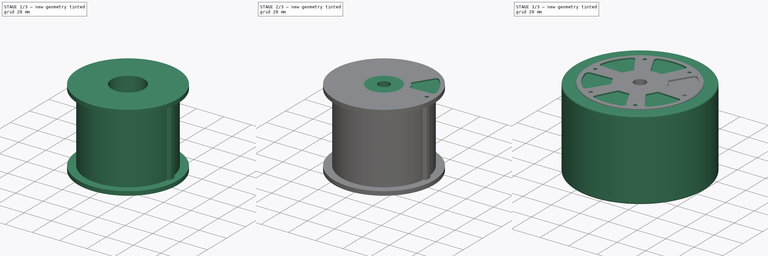
[diagram: build sequence overview — one tinted view per stage of 3, left to right]
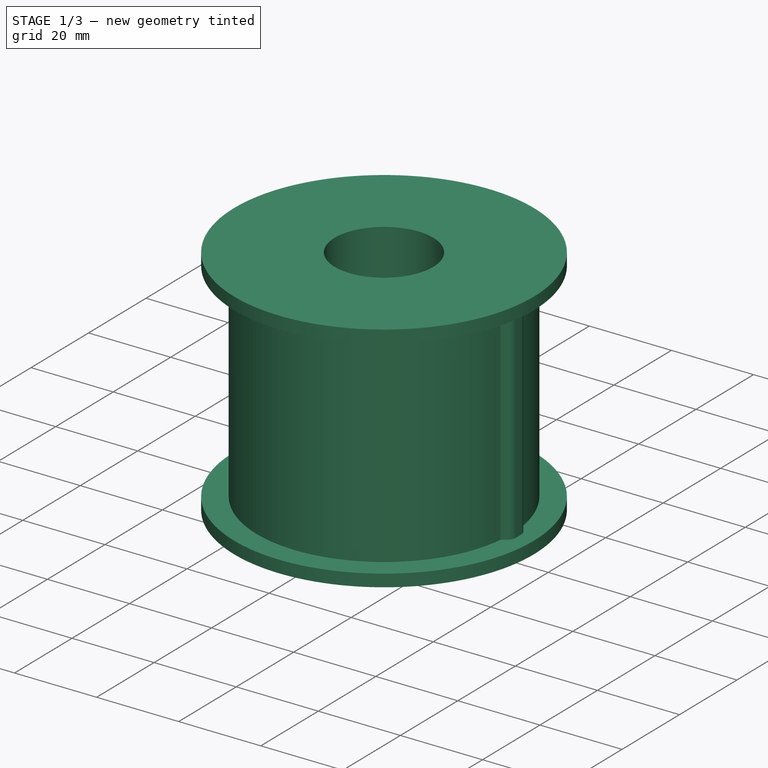
[diagram: stage 1 of 3 — iso view after this stage's code; geometry added in this stage tinted green]
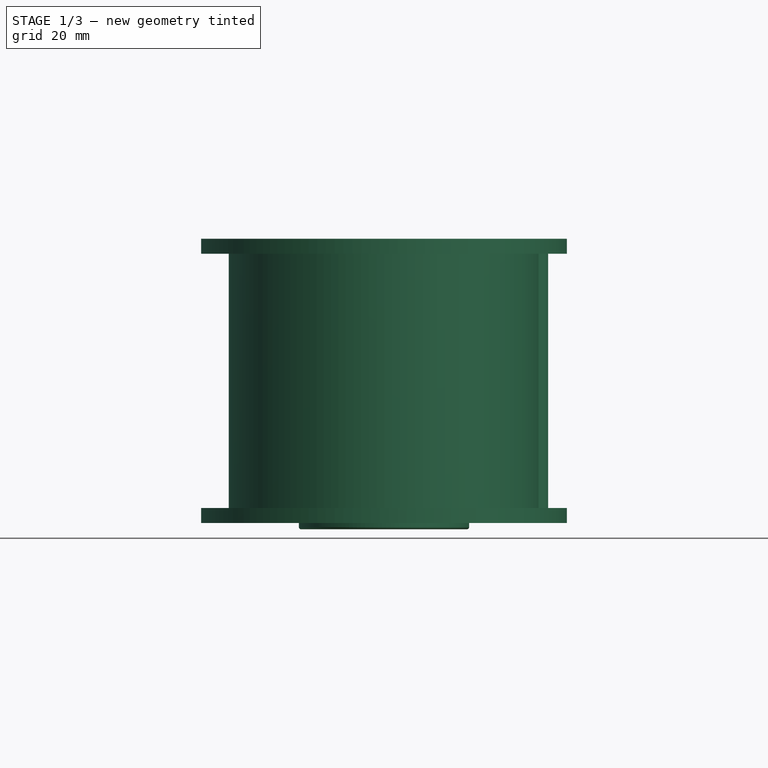
[diagram: stage 1 of 3 — front view after this stage's code; geometry added in this stage tinted green]
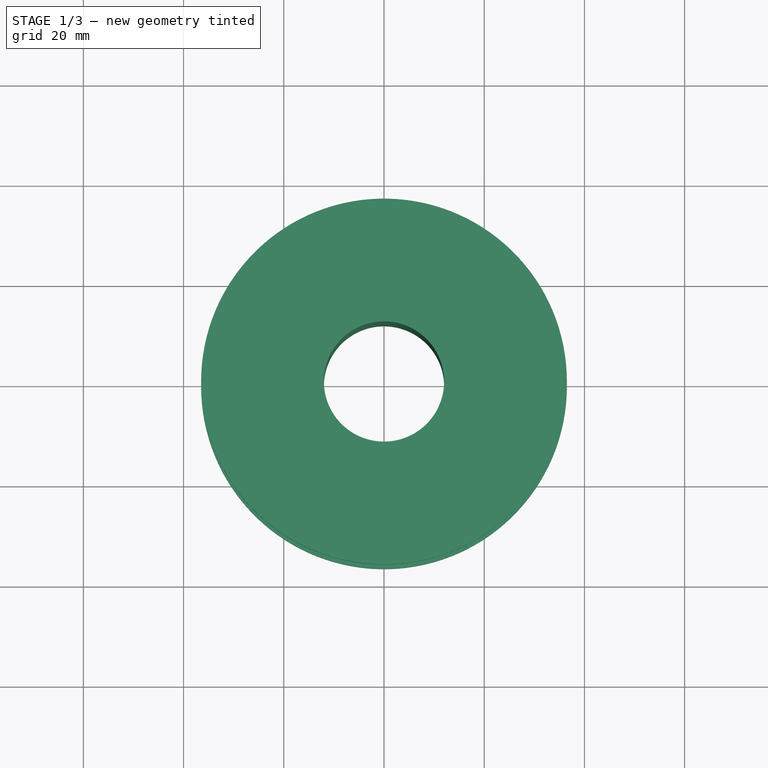
[diagram: stage 1 of 3 — top view after this stage's code; geometry added in this stage tinted green]
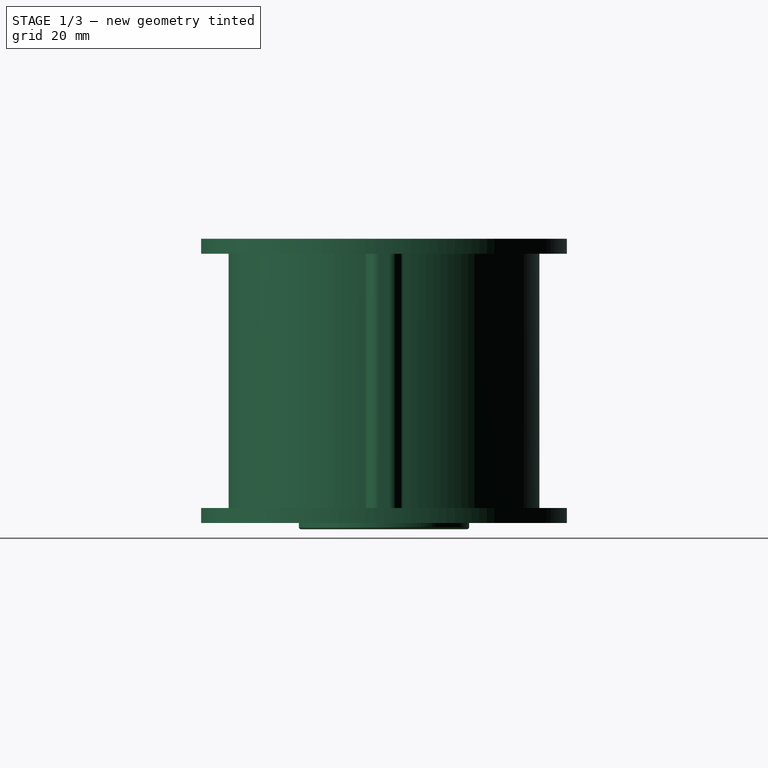
[diagram: stage 1 of 3 — right view after this stage's code; geometry added in this stage tinted green]
FCSTD DOCUMENT  (FreeCAD 0.22R37898 (Git))
Label: skateboard motor (flat type)
License: All rights reserved
LicenseURL: http://en.wikipedia.org/wiki/All_rights_reserved
objects: Sketcher::SketchObject×6, PartDesign::Revolution×3, PartDesign::Body×3, PartDesign::Pocket×2, App::FeaturePython×1, Part::Feature×1, PartDesign::Pad×1, PartDesign::PolarPattern×1, App::Part×1
note: 23 computed .brp shape members not serialized (recipe doc carries the construction recipe); baked Part::Feature solids carry a one-line shape summary decoded from their .brp

FEATURE [Sketcher::SketchObject] Sketch
  AttachmentSupport = -> [XZ_Plane002]
  FullyConstrained = true
  MapMode = 5
  Placement = pos=(0,0,0) rot=(1,0,0;1.5708rad)
  expr: Constraints[28] = dd.StatorDiameter / 2 + 5 mm
  expr: Constraints[3] = dd.Thickness
  expr: Constraints[4] = dd.StatorDiameter / 2
  expr: Constraints[5] = dd.WheelWidth + 0.75 mm
  expr: Constraints[6] = dd.WheelInnerDiameter / 2
  sketch-geometry (12):
    g0: LineSegment StartX=12 StartY=0 StartZ=0 EndX=12 EndY=58 EndZ=0
    g1: LineSegment StartX=12 StartY=58 StartZ=0 EndX=36.5 EndY=58 EndZ=0
    g2: LineSegment StartX=36.5 StartY=1.25 StartZ=0 EndX=36.5 EndY=4.25 EndZ=0
    g3: LineSegment StartX=36.5 StartY=4.25 StartZ=0 EndX=31 EndY=4.25 EndZ=0
    g4: LineSegment StartX=31 StartY=4.25 StartZ=0 EndX=31 EndY=55 EndZ=0
    g5: LineSegment StartX=31 StartY=55 StartZ=0 EndX=36.5 EndY=55 EndZ=0
    g6: LineSegment StartX=36.5 StartY=55 StartZ=0 EndX=36.5 EndY=58 EndZ=0
    g7: LineSegment StartX=36.5 StartY=1.25 StartZ=0 EndX=17 EndY=1.25 EndZ=0
    g8: LineSegment StartX=17 StartY=1.25 StartZ=0 EndX=17 EndY=0.5 EndZ=0
    g9: LineSegment StartX=16.5 StartY=0 StartZ=0 EndX=12 EndY=0 EndZ=0
    g10: ArcOfCircle CenterX=16.5 CenterY=0.5 CenterZ=0 NormalX=0 NormalY=0 NormalZ=1 AngleXU=0 Radius=0.5 StartAngle=4.71239 EndAngle=6.28319
    g11: GeomPoint X=17 Y=0 Z=0
  constraints (34):
    c: Vertical(g0)
    c: Coincident(g0,g1)
    c: Horizontal(g1)
    c: DistanceY(g-1,g0) = 58
    c: DistanceX(g-1,g0) = 12
    c: DistanceY(g2,g1) = 56.75
    c: DistanceX(g-1,g2) = 36.5
    c: Vertical(g2)
    c: Coincident(g3,g2)
    c: Horizontal(g3)
    c: Coincident(g4,g3)
    c: Vertical(g4)
    c: Coincident(g5,g4)
    c: Horizontal(g5)
    c: Coincident(g6,g5)
    c: Coincident(g6,g1)
    c: Vertical(g6)
    c: DistanceX(g3,g3) = 5.5
    c: Equal(g6,g2)
    c: DistanceY(g6,g6) = 3
    c: Vertical(g5,g2)
    c: Coincident(g7,g2)
    c: Horizontal(g7)
    c: Coincident(g8,g7)
    c: PointOnObject(g9,g-1)
    c: Horizontal(g9)
    c: Coincident(g0,g9)
    c: Vertical(g8)
    c: DistanceX(g-1,g11) = 17
    c: PointOnObject(g11,g8)
    c: PointOnObject(g11,g9)
    c: Tangent(g8,g10) = 1.5708
    c: Tangent(g9,g10) = 1.5708
    c: Radius(g10) = 0.5
FEATURE [App::FeaturePython] dd  # WARN: FeaturePython — macro-defined, semantics opaque (R4)
  AxisDiameter = 8
  AxisStickout = 39.5
  BearingDiameter = 22
  DynamicData = Created with DynamicData (v2.62) workbench. | This is a simple container object built | for holding custom properties.
  StatorDiameter = 24
  Thickness = 58
  WheelDiameter = 90
  WheelInnerDiameter = 73
  WheelWidth = 56
  expr: Thickness = WheelWidth + 2 mm
FEATURE [PartDesign::Revolution] Revolution002
  Angle = 360
  Angle2 = 60
  Axis = (0,2e-16,1)
  Base = (0,0,0)
  Placement = pos=(0,0,0) rot=(1,0,0;1.5708rad)
  Profile = -> Sketch
  ReferenceAxis = -> Sketch [V_Axis]
  Reversed = true
  Suppressed = false
  Type = 0
FEATURE [PartDesign::Body] Body001  label="Stator"
  AllowCompound = false
  Group = -> [Sketch001,Revolution001]
  Origin = -> Origin001
  Tip = -> Revolution001
FEATURE [Sketcher::SketchObject] Sketch005  label="Screw hole sketch"
  AttachmentSupport = -> [XY_Plane002]
  FullyConstrained = true
  MapMode = 5
  sketch-geometry (2):
    g0: Circle CenterX=0 CenterY=0 CenterZ=0 NormalX=0 NormalY=0 NormalZ=1 AngleXU=0 Radius=31.25
    g1: Circle CenterX=31.25 CenterY=0 CenterZ=0 NormalX=0 NormalY=0 NormalZ=1 AngleXU=0 Radius=1.25
  constraints (5):
    c: Coincident(g0,g-1)
    c: Diameter(g0) = 62.5
    c: PointOnObject(g1,g0)
    c: PointOnObject(g1,g-1)
    c: Diameter(g1) = 2.5
FEATURE [Sketcher::SketchObject] Sketch004
  AttachmentOffset = pos=(0,0,58) rot=(0,0,1;0rad)
  AttachmentSupport = -> [XY_Plane002]
  ExternalGeometry = -> [Sketch005]
  FullyConstrained = true
  MapMode = 5
  Placement = pos=(0,0,58) rot=(0,0,1;0rad)
  expr: .AttachmentOffset.Base.z = dd.Thickness
  expr: Constraints[1] = dd.WheelInnerDiameter / 2 - 5.5 mm
  sketch-geometry (8):
    g0: ArcOfCircle CenterX=0 CenterY=0 CenterZ=0 NormalX=0 NormalY=0 NormalZ=1 AngleXU=0 Radius=31 StartAngle=6.16021 EndAngle=6.40616
    g1: LineSegment StartX=32.7659 StartY=1 StartZ=0 EndX=32.7659 EndY=-1 EndZ=0
    g2: ArcOfCircle CenterX=30.7149 CenterY=1 CenterZ=0 NormalX=0 NormalY=0 NormalZ=1 AngleXU=0 Radius=2.051 StartAngle=0 EndAngle=0.950001
    g3: ArcOfCircle CenterX=30.7149 CenterY=-1 CenterZ=0 NormalX=0 NormalY=0 NormalZ=1 AngleXU=0 Radius=2.051 StartAngle=5.33318 EndAngle=6.28319
    g4: LineSegment StartX=31.9079 StartY=2.66832 StartZ=0 EndX=31.0945 EndY=3.25 EndZ=0
    g5: LineSegment StartX=31.9079 StartY=-2.66832 StartZ=0 EndX=31.0945 EndY=-3.25 EndZ=0
    g6: ArcOfCircle CenterX=31.5599 CenterY=-3.90073 CenterZ=0 NormalX=0 NormalY=0 NormalZ=1 AngleXU=0 Radius=0.8 StartAngle=2.19159 EndAngle=3.01862
    g7: ArcOfCircle CenterX=31.5599 CenterY=3.90073 CenterZ=0 NormalX=0 NormalY=0 NormalZ=1 AngleXU=0 Radius=0.8 StartAngle=3.26457 EndAngle=4.09159
  constraints (19):
    c: Coincident(g0,g-1)
    c: Radius(g0) = 31
    c: Tangent(g1,g2) = 1.5708
    c: Tangent(g1,g3) = 1.5708
    c: Tangent(g7,g0) = 1.5708
    c: Tangent(g6,g0) = 1.5708
    c: Equal(g6,g7)
    c: Tangent(g6,g5) = -1.5708
    c: Tangent(g7,g4) = 1.5708
    c: Tangent(g4,g2) = -1.5708
    c: Tangent(g5,g3) = 1.5708
    c: Equal(g5,g4)
    c: DistanceX(g0,g1) = 2
    c: Radius(g6) = 0.8
    c: Equal(g3,g2)
    c: DistanceY(g5,g4) = 6.5
    c: Distance(g5) = 1
    c: Symmetric(g1,g1,g-1)
    c: DistanceY(g1,g1) = 2
FEATURE [PartDesign::Pad] Pad
  BaseFeature = -> Revolution002
  Direction = (0,0,1)
  Length = 56
  Length2 = 10
  Placement = pos=(0,0,0) rot=(1,0,0;1.5708rad)
  Profile = -> Sketch004
  ReferenceAxis = -> Sketch004 [N_Axis]
  Reversed = true
  Suppressed = false
  Type = 0
  expr: Length = dd.WheelWidth
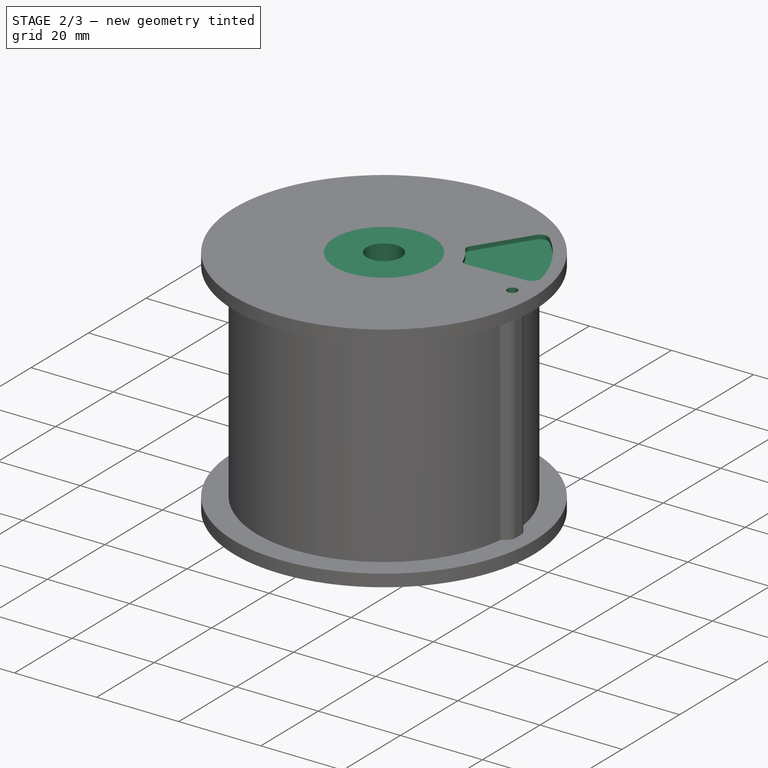
[diagram: stage 2 of 3 — iso view after this stage's code; geometry added in this stage tinted green]
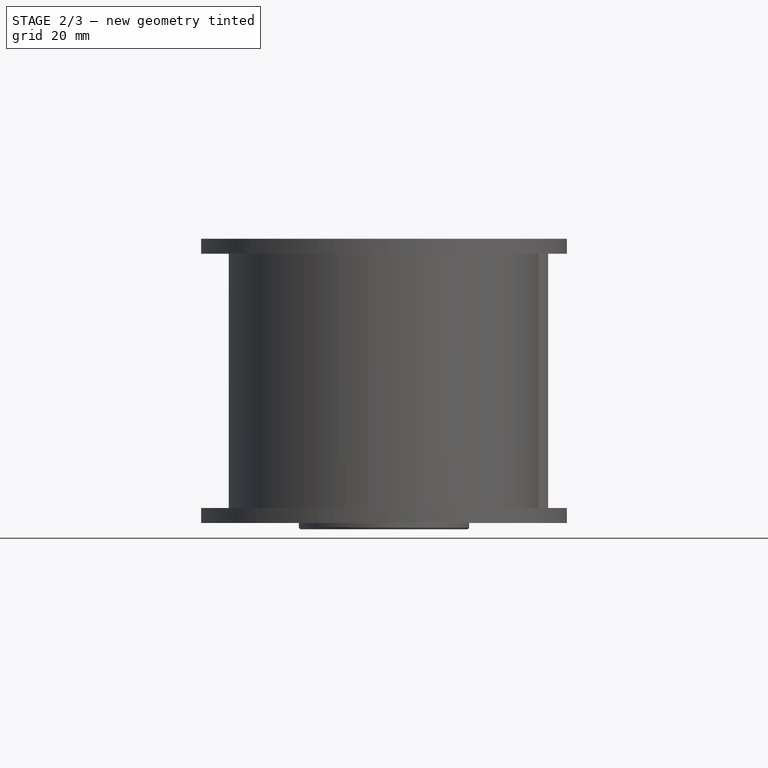
[diagram: stage 2 of 3 — front view after this stage's code; geometry added in this stage tinted green]
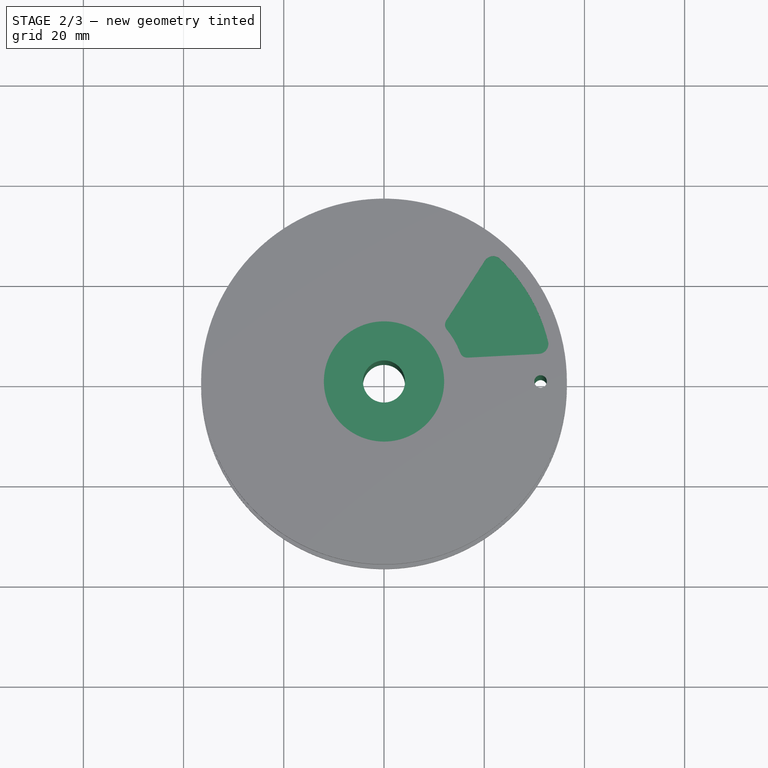
[diagram: stage 2 of 3 — top view after this stage's code; geometry added in this stage tinted green]
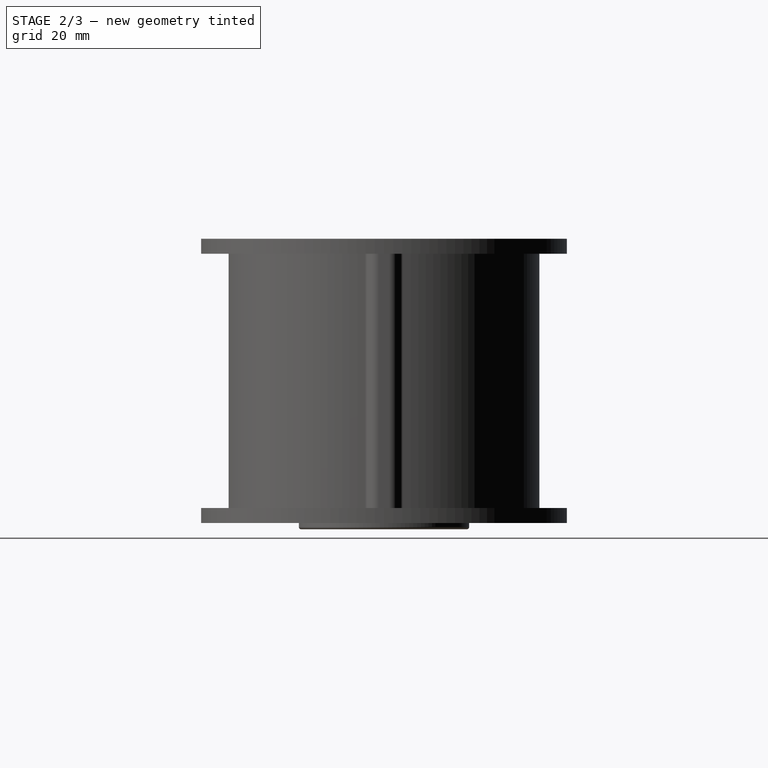
[diagram: stage 2 of 3 — right view after this stage's code; geometry added in this stage tinted green]
FEATURE [PartDesign::Body] Body003  label="Wheel"
  AllowCompound = false
  Group = -> [Sketch003,Revolution003]
  Origin = -> Origin003
  Tip = -> Revolution003
FEATURE [Part::Feature] Shape  label="Bearing"
  Placement = pos=(0,0,3.5) rot=(0,0,1;0rad)
  shape: bbox 22 x 22 x 7 mm, 14 faces (baked)
FEATURE [Sketcher::SketchObject] Sketch001
  AttachmentSupport = -> [XZ_Plane001]
  FullyConstrained = true
  MapMode = 5
  Placement = pos=(0,0,0) rot=(1,0,0;1.5708rad)
  expr: Constraints[12] = dd.BearingDiameter / 2
  expr: Constraints[13] = dd.AxisDiameter / 2 + 0.2 mm
  expr: Constraints[14] = dd.Thickness
  expr: Constraints[15] = dd.StatorDiameter / 2
  sketch-geometry (6):
    g0: LineSegment StartX=12 StartY=58 StartZ=0 EndX=12 EndY=0 EndZ=0
    g1: LineSegment StartX=12 StartY=0 StartZ=0 EndX=11 EndY=0 EndZ=0
    g2: LineSegment StartX=11 StartY=0 StartZ=0 EndX=11 EndY=6 EndZ=0
    g3: LineSegment StartX=11 StartY=6 StartZ=0 EndX=4.2 EndY=6 EndZ=0
    g4: LineSegment StartX=4.2 StartY=6 StartZ=0 EndX=4.2 EndY=58 EndZ=0
    g5: LineSegment StartX=4.2 StartY=58 StartZ=0 EndX=12 EndY=58 EndZ=0
  constraints (18):
    c: Vertical(g0)
    c: Coincident(g1,g2)
    c: Vertical(g2)
    c: Coincident(g2,g3)
    c: Horizontal(g3)
    c: Coincident(g3,g4)
    c: Vertical(g4)
    c: Coincident(g4,g5)
    c: Coincident(g5,g0)
    c: Horizontal(g5)
    c: Horizontal(g1)
    c: PointOnObject(g1,g-1)
    c: DistanceX(g-1,g1) = 11
    c: DistanceX(g-1,g3) = 4.2
    c: DistanceY(g1,g4) = 58
    c: DistanceX(g-1,g0) = 12
    c: DistanceY(g2,g2) = 6
    c: Coincident(g1,g0)
FEATURE [PartDesign::Revolution] Revolution001
  Angle = 360
  Angle2 = 60
  Axis = (0,2e-16,1)
  Base = (0,0,0)
  Placement = pos=(0,0,0) rot=(1,0,0;1.5708rad)
  Profile = -> Sketch001
  ReferenceAxis = -> Sketch001 [V_Axis]
  Reversed = true
  Suppressed = false
  Type = 0
FEATURE [PartDesign::Pocket] Pocket  label="Screw hole"
  BaseFeature = -> Pad
  Direction = (0,0,-1)
  Length = 5
  Length2 = 5
  Midplane = true
  Placement = pos=(0,0,0) rot=(1,0,0;1.5708rad)
  Profile = -> Sketch005
  ReferenceAxis = -> Sketch005 [N_Axis]
  Suppressed = false
  Type = 1
FEATURE [Sketcher::SketchObject] Sketch006  label="RecessPattern sketch"
  AttachmentOffset = pos=(0,0,57) rot=(0,0,1;0rad)
  AttachmentSupport = -> [XY_Plane002]
  FullyConstrained = true
  MapMode = 5
  Placement = pos=(0,0,57) rot=(0,0,1;0rad)
  expr: .AttachmentOffset.Base.z = dd.WheelWidth + 1 mm
  expr: Constraints[2] = dd.WheelInnerDiameter - 2 * 2.8 mm
  sketch-geometry (11):
    g0: Circle CenterX=0 CenterY=0 CenterZ=0 NormalX=0 NormalY=0 NormalZ=1 AngleXU=0 Radius=16.25
    g1: Circle CenterX=0 CenterY=0 CenterZ=0 NormalX=0 NormalY=0 NormalZ=1 AngleXU=0 Radius=33.7
    g2: ArcOfCircle CenterX=0 CenterY=0 CenterZ=0 NormalX=0 NormalY=0 NormalZ=1 AngleXU=0 Radius=16.25 StartAngle=0.359702 EndAngle=0.69157
    g3: ArcOfCircle CenterX=0 CenterY=0 CenterZ=0 NormalX=0 NormalY=0 NormalZ=1 AngleXU=0 Radius=33.7 StartAngle=0.238768 EndAngle=0.812504
    g4: ArcOfCircle CenterX=16.614 CenterY=6.24792 CenterZ=0 NormalX=0 NormalY=0 NormalZ=1 AngleXU=0 Radius=1.5 StartAngle=3.50129 EndAngle=4.76511
    g5: ArcOfCircle CenterX=13.6719 CenterY=11.32 CenterZ=0 NormalX=0 NormalY=0 NormalZ=1 AngleXU=0 Radius=1.5 StartAngle=2.56935 EndAngle=3.83316
    g6: ArcOfCircle CenterX=21.7995 CenterY=23.0146 CenterZ=0 NormalX=0 NormalY=0 NormalZ=1 AngleXU=0 Radius=2 StartAngle=0.812504 EndAngle=2.56935
    g7: ArcOfCircle CenterX=30.8007 CenterY=7.49722 CenterZ=0 NormalX=0 NormalY=0 NormalZ=1 AngleXU=0 Radius=2 StartAngle=4.76511 EndAngle=6.52195
    g8: LineSegment StartX=0 StartY=0 StartZ=0 EndX=29.1507 EndY=16.9094 EndZ=0
    g9: LineSegment StartX=20.1182 StartY=24.0976 StartZ=0 EndX=12.4108 EndY=12.1323 EndZ=0
    g10: LineSegment StartX=16.6931 StartY=4.75 StartZ=0 EndX=30.9061 EndY=5.5 EndZ=0
  constraints (25):
    c: Coincident(g0,g-1)
    c: Coincident(g1,g0)
    c: Diameter(g1) = 67.4
    c: Diameter(g0) = 32.5
    c: Coincident(g2,g0)
    c: PointOnObject(g2,g0)
    c: Coincident(g3,g0)
    c: PointOnObject(g3,g1)
    c: Tangent(g7,g3) = -1.5708
    c: Tangent(g6,g3) = -1.5708
    c: Tangent(g5,g2) = 1.5708
    c: Tangent(g4,g2) = 1.5708
    c: Coincident(g8,g0)
    c: PointOnObject(g8,g3)
    c: Tangent(g10,g7) = -1.5708
    c: Tangent(g10,g4) = -1.5708
    c: Tangent(g9,g5) = -1.5708
    c: Tangent(g9,g6) = -1.5708
    c: Symmetric(g5,g4,g8)
    c: Symmetric(g7,g6,g8)
    c: Radius(g5) = 1.5
    c: Radius(g6) = 2
    c: Distance(g6,g7) = 21.5
    c: DistanceY(g0,g4) = 4.75
    c: DistanceY(g0,g7) = 5.5
FEATURE [PartDesign::Pocket] Pocket001  label="RecessPattern"
  BaseFeature = -> Pocket
  Direction = (0,0,-1)
  Length = 5
  Length2 = 5
  Placement = pos=(0,0,0) rot=(1,0,0;1.5708rad)
  Profile = -> Sketch006
  ReferenceAxis = -> Sketch006 [N_Axis]
  Reversed = true
  Suppressed = false
  Type = 1
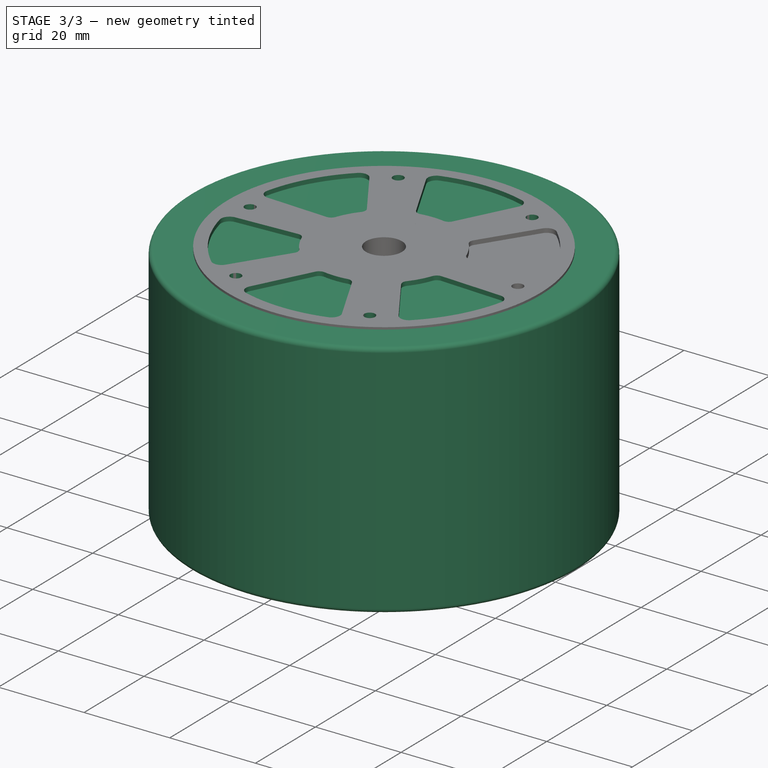
[diagram: stage 3 of 3 — iso view after this stage's code; geometry added in this stage tinted green]
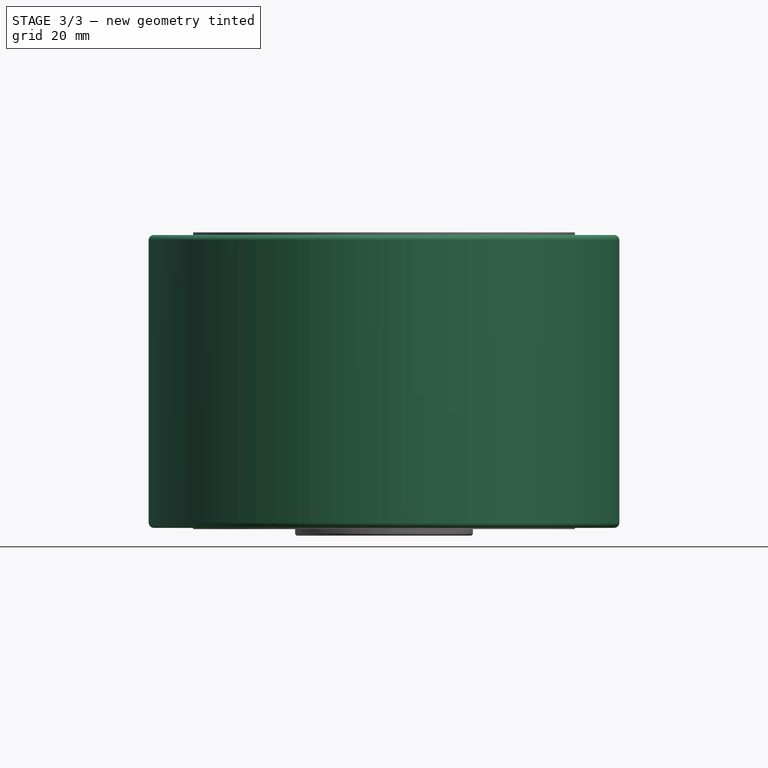
[diagram: stage 3 of 3 — front view after this stage's code; geometry added in this stage tinted green]
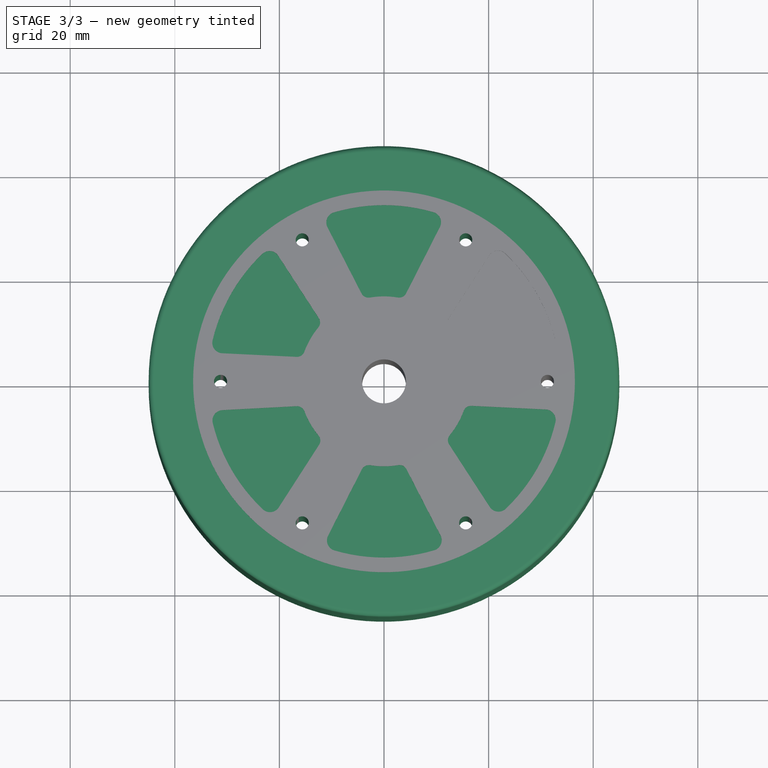
[diagram: stage 3 of 3 — top view after this stage's code; geometry added in this stage tinted green]
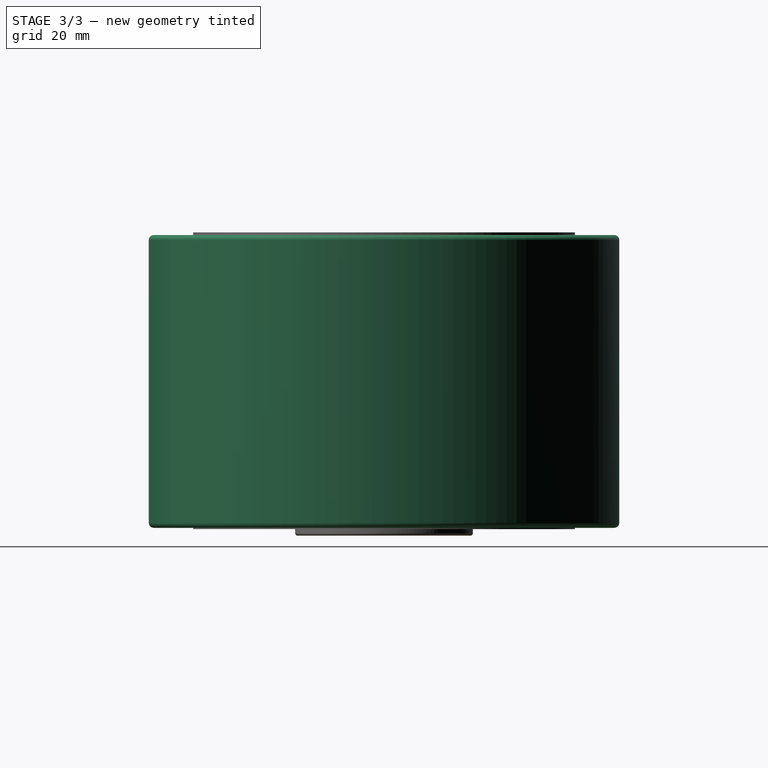
[diagram: stage 3 of 3 — right view after this stage's code; geometry added in this stage tinted green]
FEATURE [Sketcher::SketchObject] Sketch003
  AttachmentSupport = -> [XZ_Plane003]
  FullyConstrained = true
  MapMode = 5
  Placement = pos=(0,0,0) rot=(1,0,0;1.5708rad)
  expr: Constraints[6] = dd.WheelInnerDiameter / 2
  expr: Constraints[7] = dd.WheelDiameter / 2
  expr: Constraints[8] = dd.WheelWidth
  sketch-geometry (8):
    g0: LineSegment StartX=36.5 StartY=57.5 StartZ=0 EndX=36.5 EndY=1.5 EndZ=0
    g1: LineSegment StartX=36.5 StartY=1.5 StartZ=0 EndX=44 EndY=1.5 EndZ=0
    g2: LineSegment StartX=45 StartY=2.5 StartZ=0 EndX=45 EndY=56.5 EndZ=0
    g3: LineSegment StartX=44 StartY=57.5 StartZ=0 EndX=36.5 EndY=57.5 EndZ=0
    g4: ArcOfCircle CenterX=44 CenterY=56.5 CenterZ=0 NormalX=0 NormalY=0 NormalZ=1 AngleXU=0 Radius=1 StartAngle=1.1e-15 EndAngle=1.5708
    g5: GeomPoint X=45 Y=57.5 Z=0
    g6: ArcOfCircle CenterX=44 CenterY=2.5 CenterZ=0 NormalX=0 NormalY=0 NormalZ=1 AngleXU=0 Radius=1 StartAngle=4.71239 EndAngle=6.28319
    g7: GeomPoint X=45 Y=1.5 Z=0
  constraints (20):
    c: Coincident(g0,g1)
    c: Coincident(g3,g0)
    c: Vertical(g0)
    c: Vertical(g2)
    c: Horizontal(g1)
    c: Horizontal(g3)
    c: DistanceX(g-1,g0) = 36.5
    c: DistanceX(g-1,g7) = 45
    c: DistanceY(g7,g5) = 56
    c: PointOnObject(g5,g2)
    c: PointOnObject(g5,g3)
    c: Tangent(g2,g4) = -1.5708
    c: Tangent(g3,g4) = -1.5708
    c: PointOnObject(g7,g1)
    c: PointOnObject(g7,g2)
    c: Tangent(g1,g6) = -1.5708
    c: Tangent(g2,g6) = -1.5708
    c: Radius(g4) = 1
    c: Equal(g4,g6)
    c: DistanceY(g-1,g7) = 1.5
FEATURE [PartDesign::Revolution] Revolution003
  Angle = 360
  Angle2 = 60
  Axis = (0,2e-16,1)
  Base = (0,0,0)
  Placement = pos=(0,0,0) rot=(1,0,0;1.5708rad)
  Profile = -> Sketch003
  ReferenceAxis = -> Sketch003 [V_Axis]
  Reversed = true
  Suppressed = false
  Type = 0
FEATURE [PartDesign::PolarPattern] PolarPattern
  Angle = 360
  Axis = -> Sketch004 [N_Axis]
  BaseFeature = -> Pocket001
  Mode = 0
  Occurrences = 6
  Offset = 120
  Originals = -> [Pad,Pocket,Pocket001]
  Placement = pos=(0,0,0) rot=(1,0,0;1.5708rad)
  Refine = true
  Suppressed = false
  TransformMode = 0
FEATURE [PartDesign::Body] Body002  label="Rotor"
  AllowCompound = false
  Group = -> [Sketch,Revolution002,Pad,Pocket,Pocket001,Sketch004,PolarPattern,Sketch005,Sketch006]
  Origin = -> Origin002
  Tip = -> PolarPattern
FEATURE [App::Part] Part  label="Skateboard motor"
  Group = -> [Body002,Body003,Shape,Body001,dd]
  Origin = -> Origin
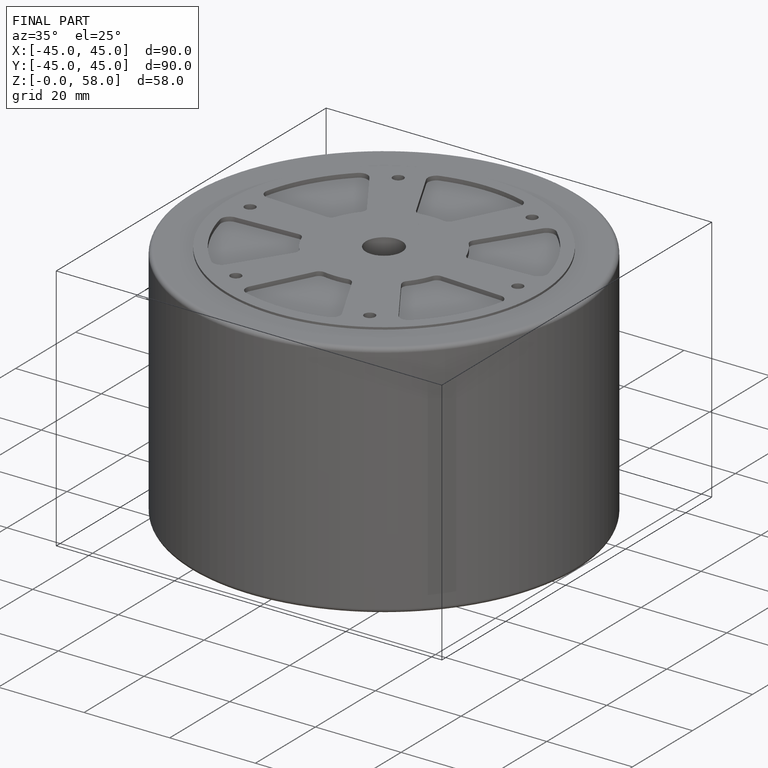
[diagram: finished part — iso view with bounding-box wireframe]
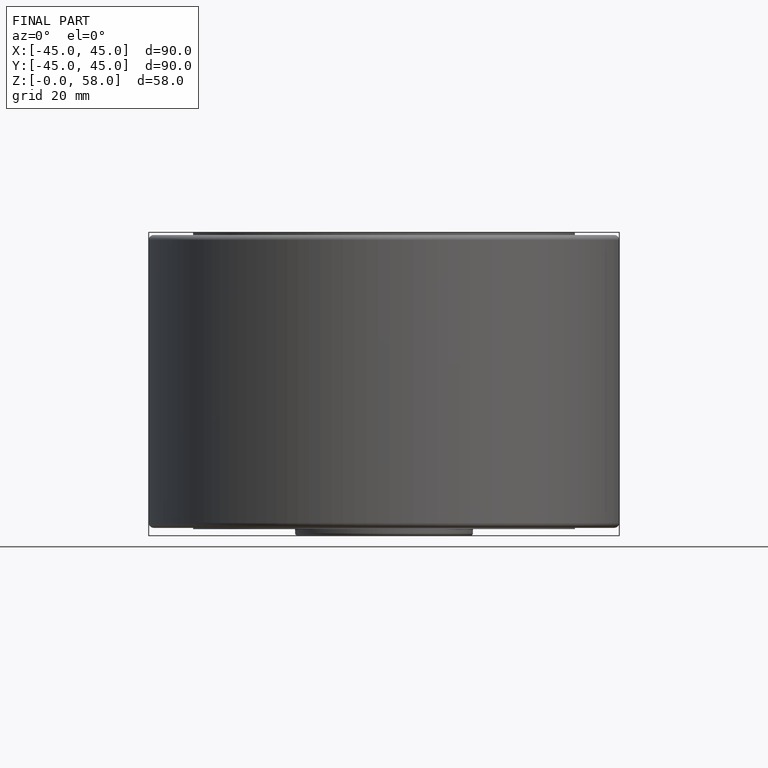
[diagram: finished part — front view with bounding-box wireframe]
